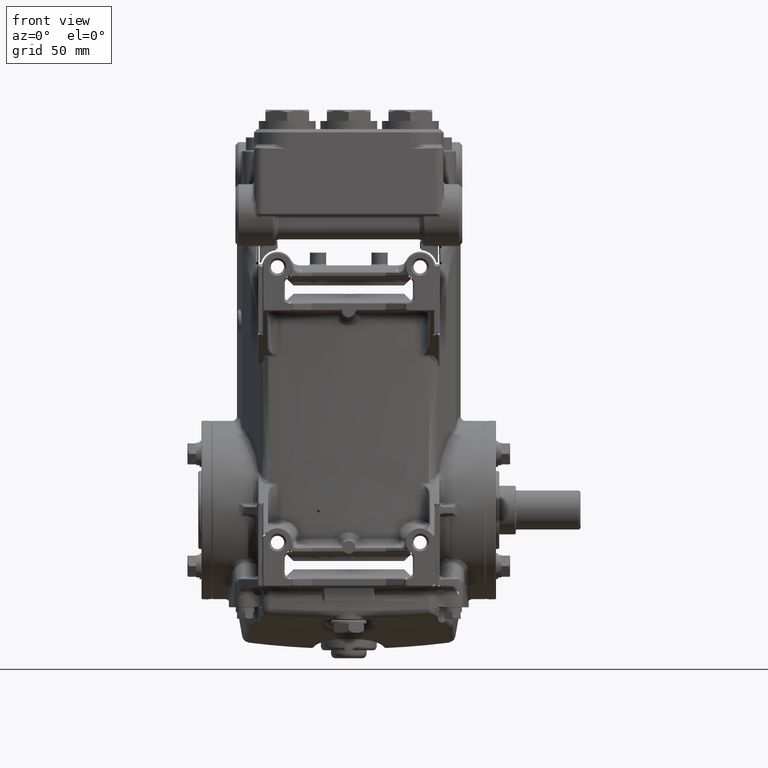
[diagram: clean part render]
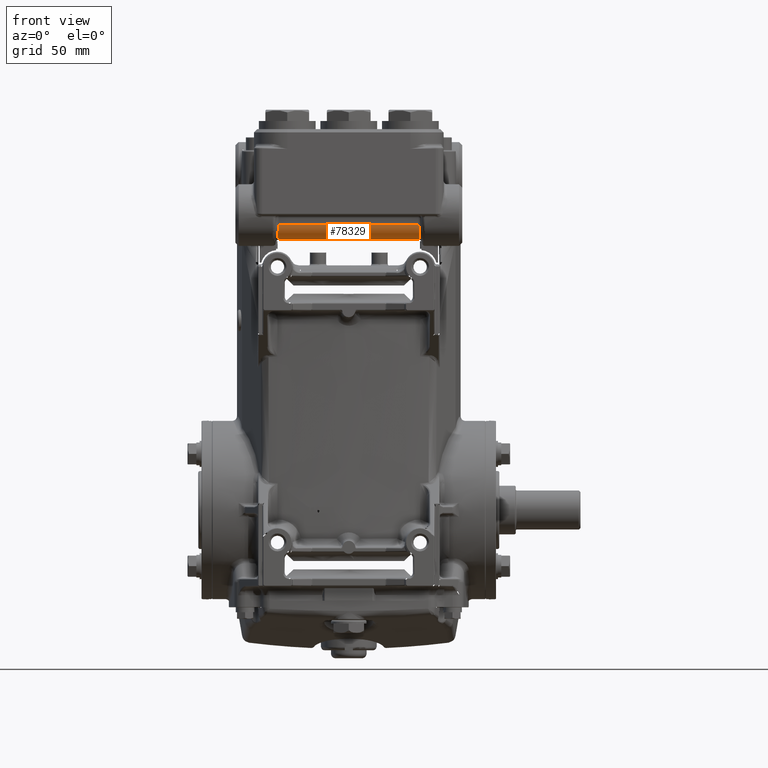
[diagram: same view with one face highlighted and labeled with its STEP entity id]
A machine part, front view. The second image highlights one B-rep face of the part: STEP entity #78329.
In plain terms, the highlighted cylindrical surface (edge-blend (fillet) strip) has radius 9 mm, axis along (1, 0, 0).
Its self-contained STEP definition (entity closure, byte-faithful):
#3794 = DIRECTION ( 'NONE',  ( 1.000000000000000000, 0.000000000000000000, 0.000000000000000000 ) ) ;
#4059 = CARTESIAN_POINT ( 'NONE',  ( -1.715017941036644400, -2.438522742517042374, 6.805935736249091761 ) ) ;
#4676 = CARTESIAN_POINT ( 'NONE',  ( -1.720790652589006209, -2.276190360377297495, 6.617135495612462393 ) ) ;
#4833 = CARTESIAN_POINT ( 'NONE',  ( -1.715017941036644844, -2.229497334617049020, 6.596910328349100183 ) ) ;
#4870 = LINE ( 'NONE', #43266, #115713 ) ;
#11807 = CARTESIAN_POINT ( 'NONE',  ( -1.700499929893264150, -2.127562115068677873, 6.574803149606296415 ) ) ;
#12872 = CARTESIAN_POINT ( 'NONE',  ( -1.724648345717565201, -2.339002513188914723, 6.660725409643123207 ) ) ;
#13236 = CYLINDRICAL_SURFACE ( 'NONE', #108578, 0.3543307086614176371 ) ;
#13926 = CARTESIAN_POINT ( 'NONE',  ( 1.715017941036644400, -2.438522742517042374, 6.805935736249091761 ) ) ;
#14743 = ORIENTED_EDGE ( 'NONE', *, *, #119746, .T. ) ;
#14915 = CARTESIAN_POINT ( 'NONE',  ( 1.700499929893272144, -2.460629921259842146, 6.907870955797466905 ) ) ;
#16114 = CARTESIAN_POINT ( 'NONE',  ( 1.700499929893264150, -2.127562115068677873, 6.574803149606296415 ) ) ;
#17188 = CARTESIAN_POINT ( 'NONE',  ( 1.715017941036644844, -2.229497334617049020, 6.596910328349100183 ) ) ;
#20791 = DIRECTION ( 'NONE',  ( 0.000000000000000000, 0.000000000000000000, -1.000000000000000000 ) ) ;
#21491 = ORIENTED_EDGE ( 'NONE', *, *, #76699, .F. ) ;
#22878 = CARTESIAN_POINT ( 'NONE',  ( -1.700499929893272144, -2.460629921259842146, 6.907870955797466905 ) ) ;
#24352 = CARTESIAN_POINT ( 'NONE',  ( 1.715017941036644400, -2.438522742517042374, 6.805935736249091761 ) ) ;
#25878 = ORIENTED_EDGE ( 'NONE', *, *, #122022, .F. ) ;
#26565 = B_SPLINE_CURVE_WITH_KNOTS ( 'NONE', 3,
 ( #73803, #54943, #112091, #94491, #36689, #26626, #27259, #92632, #75038, #17188 ),
 .UNSPECIFIED., .F., .F.,
 ( 4, 2, 2, 2, 4 ),
 ( 0.000000000000000000, 0.001929495089180908356, 0.003858990178361816712, 0.005788485267542725285, 0.007717980356723633424 ),
 .UNSPECIFIED. ) ;
#26626 = CARTESIAN_POINT ( 'NONE',  ( 1.724648345717565201, -2.339002513188914723, 6.660725409643123207 ) ) ;
#26890 = B_SPLINE_CURVE_WITH_KNOTS ( 'NONE', 3,
 ( #43656, #22878, #61261, #99557, #42405, #81955 ),
 .UNSPECIFIED., .F., .F.,
 ( 4, 2, 4 ),
 ( 0.000000000000000000, 0.001603891594894923771, 0.003207783189789847542 ),
 .UNSPECIFIED. ) ;
#27259 = CARTESIAN_POINT ( 'NONE',  ( 1.723915829049505355, -2.319286417073451290, 6.644805823907586451 ) ) ;
#29359 = CARTESIAN_POINT ( 'NONE',  ( 1.715017941036644844, -2.229497334617049020, 6.596910328349100183 ) ) ;
#29751 = CARTESIAN_POINT ( 'NONE',  ( -1.698200378297957780, -2.460629921259842590, 6.929133858267719326 ) ) ;
#32336 = B_SPLINE_CURVE_WITH_KNOTS ( 'NONE', 3,
 ( #4059, #41838, #71942, #40583, #107777, #12872, #70103, #4676, #80136, #43064 ),
 .UNSPECIFIED., .F., .F.,
 ( 4, 2, 2, 2, 4 ),
 ( 0.000000000000000000, 0.001929495089180908356, 0.003858990178361816712, 0.005788485267542725285, 0.007717980356723633424 ),
 .UNSPECIFIED. ) ;
#32732 = CARTESIAN_POINT ( 'NONE',  ( 1.698200378297957780, -2.106299212598422788, 6.574803149606299968 ) ) ;
#36231 = CARTESIAN_POINT ( 'NONE',  ( 1.709109896042665389, -2.189454576332410696, 6.584068641162728497 ) ) ;
#36689 = CARTESIAN_POINT ( 'NONE',  ( 1.724643440748689471, -2.374869554148447026, 6.696617422206796455 ) ) ;
#37903 = CARTESIAN_POINT ( 'NONE',  ( 1.698200378297957780, -2.460629921259842590, 6.929133858267719326 ) ) ;
#38748 = CARTESIAN_POINT ( 'NONE',  ( -1.715017941036644400, -2.438522742517042374, 6.805935736249091761 ) ) ;
#39277 = VERTEX_POINT ( 'NONE', #89576 ) ;
#40322 = FACE_OUTER_BOUND ( 'NONE', #107678, .T. ) ;
#40583 = CARTESIAN_POINT ( 'NONE',  ( -1.723876601397704267, -2.391105221481810705, 6.716821780805431352 ) ) ;
#41838 = CARTESIAN_POINT ( 'NONE',  ( -1.718456128681459694, -2.429668411944808426, 6.782058611260698200 ) ) ;
#42405 = CARTESIAN_POINT ( 'NONE',  ( -1.712157551721734006, -2.445889074775754679, 6.825800234712571246 ) ) ;
#43064 = CARTESIAN_POINT ( 'NONE',  ( -1.715017941036644844, -2.229497334617049020, 6.596910328349100183 ) ) ;
#43266 = CARTESIAN_POINT ( 'NONE',  ( -4.421515254687463425, -2.460629921259842590, 6.929133858267719326 ) ) ;
#43656 = CARTESIAN_POINT ( 'NONE',  ( -1.698200378297957780, -2.460629921259842590, 6.929133858267719326 ) ) ;
#43730 = ORIENTED_EDGE ( 'NONE', *, *, #106036, .T. ) ;
#44266 = EDGE_CURVE ( 'NONE', #67770, #39277, #32336, .T. ) ;
#47636 = EDGE_CURVE ( 'NONE', #39277, #117547, #88598, .T. ) ;
#49717 = CARTESIAN_POINT ( 'NONE',  ( -1.698200378297957780, -2.106299212598422788, 6.574803149606299968 ) ) ;
#50180 = CARTESIAN_POINT ( 'NONE',  ( -1.698200378297957780, -2.106299212598422788, 6.574803149606299968 ) ) ;
#51610 = CARTESIAN_POINT ( 'NONE',  ( -4.421515254687463425, -2.106299212598425008, 6.929133858267716661 ) ) ;
#51675 = ORIENTED_EDGE ( 'NONE', *, *, #47636, .T. ) ;
#53296 = CARTESIAN_POINT ( 'NONE',  ( 1.712157551721734006, -2.445889074775754679, 6.825800234712571246 ) ) ;
#54411 = VERTEX_POINT ( 'NONE', #37903 ) ;
#54943 = CARTESIAN_POINT ( 'NONE',  ( 1.718456128681459694, -2.429668411944808426, 6.782058611260698200 ) ) ;
#55732 = CARTESIAN_POINT ( 'NONE',  ( 1.715017941036644844, -2.229497334617049020, 6.596910328349100183 ) ) ;
#61261 = CARTESIAN_POINT ( 'NONE',  ( -1.703285185682590797, -2.458734700819997787, 6.887014442133758685 ) ) ;
#61860 = CARTESIAN_POINT ( 'NONE',  ( -4.421515254687463425, -2.106299212598422788, 6.574803149606299968 ) ) ;
#62990 = VERTEX_POINT ( 'NONE', #29751 ) ;
#65614 = EDGE_CURVE ( 'NONE', #112730, #78353, #71168, .T. ) ;
#67770 = VERTEX_POINT ( 'NONE', #38748 ) ;
#68989 = CARTESIAN_POINT ( 'NONE',  ( -1.712157551721733340, -2.209632836153569535, 6.589543996090388767 ) ) ;
#69202 = ORIENTED_EDGE ( 'NONE', *, *, #87714, .F. ) ;
#70103 = CARTESIAN_POINT ( 'NONE',  ( -1.723915829049505355, -2.319286417073451290, 6.644805823907586451 ) ) ;
#71168 = B_SPLINE_CURVE_WITH_KNOTS ( 'NONE', 3,
 ( #55732, #102232, #36231, #111633, #16114, #101620 ),
 .UNSPECIFIED., .F., .F.,
 ( 4, 2, 4 ),
 ( 0.000000000000000000, 0.001603891594894904255, 0.003207783189789808510 ),
 .UNSPECIFIED. ) ;
#71942 = CARTESIAN_POINT ( 'NONE',  ( -1.720764988082255753, -2.418391393140772561, 6.759459606311929214 ) ) ;
#73803 = CARTESIAN_POINT ( 'NONE',  ( 1.715017941036644400, -2.438522742517042374, 6.805935736249091761 ) ) ;
#74375 = LINE ( 'NONE', #61860, #98628 ) ;
#75038 = CARTESIAN_POINT ( 'NONE',  ( 1.718455816173446005, -2.253372289336206702, 6.605763854122546519 ) ) ;
#76699 = EDGE_CURVE ( 'NONE', #54411, #98527, #90452, .T. ) ;
#78329 = ADVANCED_FACE ( 'NONE', ( #40322 ), #13236, .T. ) ;
#78353 = VERTEX_POINT ( 'NONE', #32732 ) ;
#80136 = CARTESIAN_POINT ( 'NONE',  ( -1.718455816173446005, -2.253372289336206702, 6.605763854122546519 ) ) ;
#81554 = CARTESIAN_POINT ( 'NONE',  ( 1.703285185682590797, -2.458734700819997787, 6.887014442133758685 ) ) ;
#81955 = CARTESIAN_POINT ( 'NONE',  ( -1.715017941036644400, -2.438522742517042374, 6.805935736249091761 ) ) ;
#87714 = EDGE_CURVE ( 'NONE', #62990, #54411, #4870, .T. ) ;
#88598 = B_SPLINE_CURVE_WITH_KNOTS ( 'NONE', 3,
 ( #4833, #68989, #89710, #89084, #11807, #50180 ),
 .UNSPECIFIED., .F., .F.,
 ( 4, 2, 4 ),
 ( 0.000000000000000000, 0.001603891594894904255, 0.003207783189789808510 ),
 .UNSPECIFIED. ) ;
#89084 = CARTESIAN_POINT ( 'NONE',  ( -1.703285185682590575, -2.148418628732382540, 6.576698370046145214 ) ) ;
#89576 = CARTESIAN_POINT ( 'NONE',  ( -1.715017941036644844, -2.229497334617049020, 6.596910328349100183 ) ) ;
#89710 = CARTESIAN_POINT ( 'NONE',  ( -1.709109896042665389, -2.189454576332410696, 6.584068641162728497 ) ) ;
#90452 = B_SPLINE_CURVE_WITH_KNOTS ( 'NONE', 3,
 ( #119848, #14915, #81554, #117992, #53296, #24352 ),
 .UNSPECIFIED., .F., .F.,
 ( 4, 2, 4 ),
 ( 0.000000000000000000, 0.001603891594894923771, 0.003207783189789847542 ),
 .UNSPECIFIED. ) ;
#91978 = DIRECTION ( 'NONE',  ( 1.000000000000000000, 0.000000000000000000, 0.000000000000000000 ) ) ;
#92632 = CARTESIAN_POINT ( 'NONE',  ( 1.720790652589006209, -2.276190360377297495, 6.617135495612462393 ) ) ;
#94491 = CARTESIAN_POINT ( 'NONE',  ( 1.723876601397704267, -2.391105221481810705, 6.716821780805431352 ) ) ;
#97355 = ORIENTED_EDGE ( 'NONE', *, *, #65614, .F. ) ;
#98527 = VERTEX_POINT ( 'NONE', #13926 ) ;
#98628 = VECTOR ( 'NONE', #91978, 39.37007874015748143 ) ;
#99557 = CARTESIAN_POINT ( 'NONE',  ( -1.709109896042665611, -2.451364429703412284, 6.845978494533728309 ) ) ;
#101620 = CARTESIAN_POINT ( 'NONE',  ( 1.698200378297957780, -2.106299212598422788, 6.574803149606299968 ) ) ;
#102232 = CARTESIAN_POINT ( 'NONE',  ( 1.712157551721733340, -2.209632836153569535, 6.589543996090388767 ) ) ;
#106036 = EDGE_CURVE ( 'NONE', #117547, #78353, #74375, .T. ) ;
#107678 = EDGE_LOOP ( 'NONE', ( #69202, #14743, #119226, #51675, #43730, #97355, #25878, #21491 ) ) ;
#107777 = CARTESIAN_POINT ( 'NONE',  ( -1.724643440748689471, -2.374869554148447026, 6.696617422206796455 ) ) ;
#108578 = AXIS2_PLACEMENT_3D ( 'NONE', #51610, #3794, #20791 ) ;
#111633 = CARTESIAN_POINT ( 'NONE',  ( 1.703285185682590575, -2.148418628732382540, 6.576698370046145214 ) ) ;
#112091 = CARTESIAN_POINT ( 'NONE',  ( 1.720764988082255753, -2.418391393140772561, 6.759459606311929214 ) ) ;
#112730 = VERTEX_POINT ( 'NONE', #29359 ) ;
#115713 = VECTOR ( 'NONE', #121707, 39.37007874015748143 ) ;
#117547 = VERTEX_POINT ( 'NONE', #49717 ) ;
#117992 = CARTESIAN_POINT ( 'NONE',  ( 1.709109896042665611, -2.451364429703412284, 6.845978494533728309 ) ) ;
#119226 = ORIENTED_EDGE ( 'NONE', *, *, #44266, .T. ) ;
#119746 = EDGE_CURVE ( 'NONE', #62990, #67770, #26890, .T. ) ;
#119848 = CARTESIAN_POINT ( 'NONE',  ( 1.698200378297957780, -2.460629921259842590, 6.929133858267719326 ) ) ;
#121707 = DIRECTION ( 'NONE',  ( 1.000000000000000000, 0.000000000000000000, 0.000000000000000000 ) ) ;
#122022 = EDGE_CURVE ( 'NONE', #98527, #112730, #26565, .T. ) ;